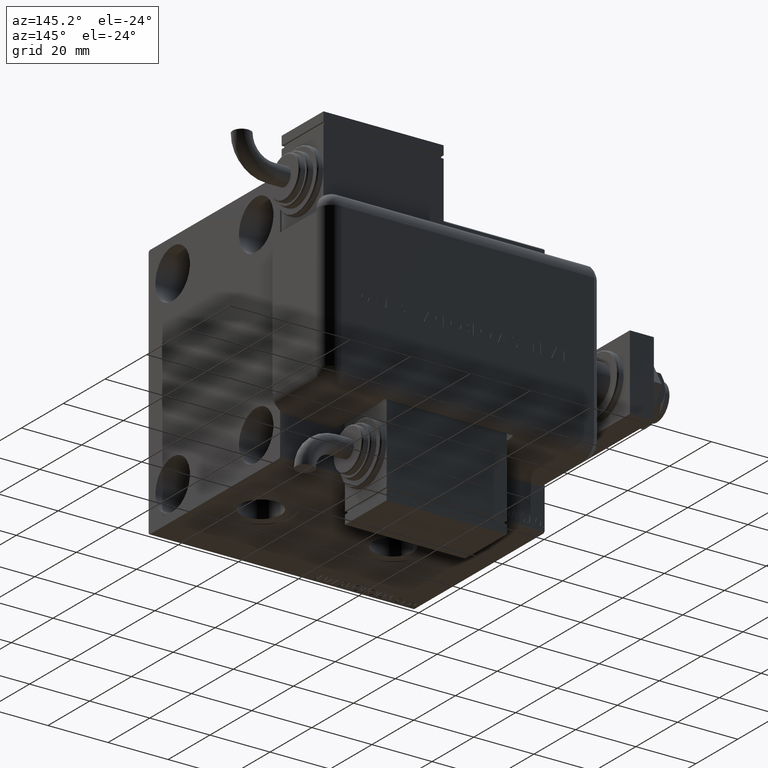
[diagram: clean part render]
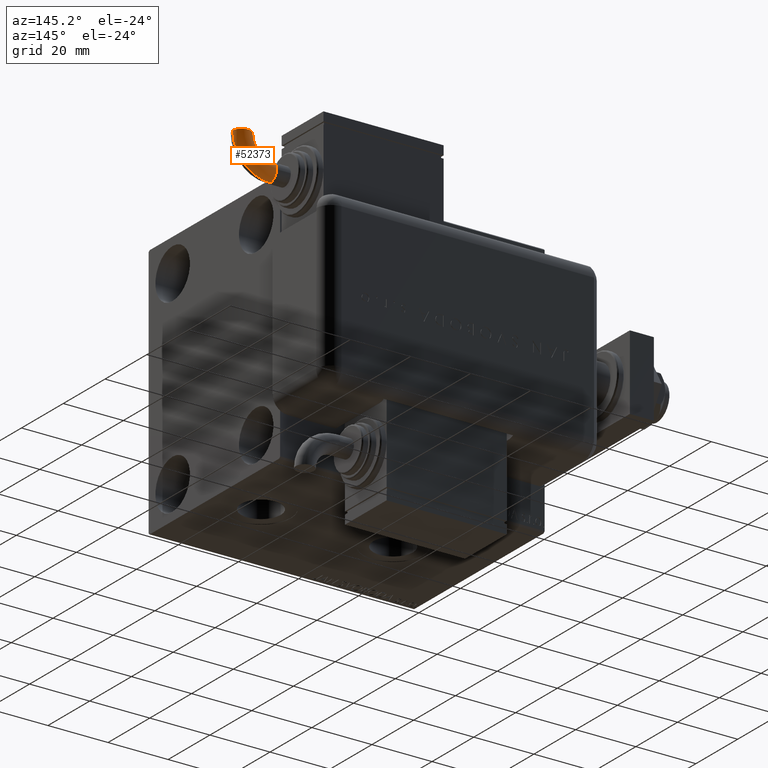
[diagram: same view with one face highlighted and labeled with its STEP entity id]
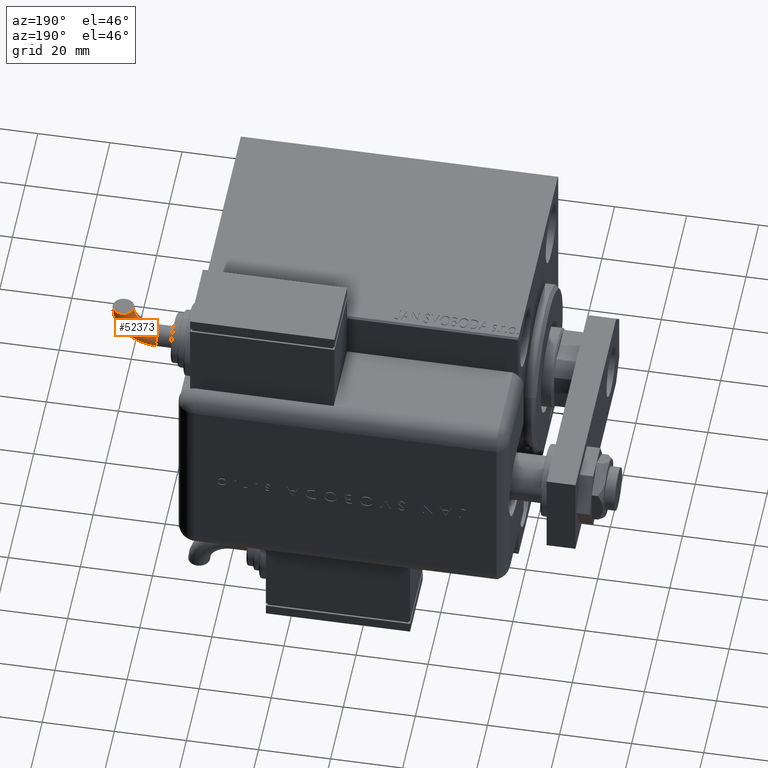
[diagram: same view with one face highlighted and labeled with its STEP entity id]
A machine part, auxiliary view. The second image highlights one B-rep face of the part: STEP entity #52373.
A second angle (auxiliary view) of the same face is appended — the face is thin or edge-on in the first view.
In plain terms, the highlighted toroidal blend (fillet) surface has major radius 9.5072 mm and minor (blend) radius 3 mm.
Its self-contained STEP definition (entity closure, byte-faithful):
#358 = ORIENTED_EDGE ( 'NONE', *, *, #15732, .T. ) ;
#2546 = ORIENTED_EDGE ( 'NONE', *, *, #47532, .F. ) ;
#4552 = ORIENTED_EDGE ( 'NONE', *, *, #36610, .F. ) ;
#4903 = EDGE_CURVE ( 'NONE', #27580, #24960, #56903, .T. ) ;
#6915 = CARTESIAN_POINT ( 'NONE',  ( -30.75201677704342274, 2.118407575146589373E-14, -2.999999999999997335 ) ) ;
#8115 = DIRECTION ( 'NONE',  ( -7.402363701065945741E-06, 0.9999999999726024713, 0.000000000000000000 ) ) ;
#9833 = CARTESIAN_POINT ( 'NONE',  ( -30.75201677704342274, 2.081668171172168513E-14, 0.000000000000000000 ) ) ;
#12486 = AXIS2_PLACEMENT_3D ( 'NONE', #56352, #28572, #24640 ) ;
#13508 = DIRECTION ( 'NONE',  ( 0.000000000000000000, 0.000000000000000000, 1.000000000000000000 ) ) ;
#13912 = VERTEX_POINT ( 'NONE', #21433 ) ;
#15732 = EDGE_CURVE ( 'NONE', #24960, #48219, #50385, .T. ) ;
#16857 = FACE_OUTER_BOUND ( 'NONE', #24577, .T. ) ;
#17196 = CARTESIAN_POINT ( 'NONE',  ( -30.75201677704341918, -2.999999999999976463, -3.673940397442056910E-16 ) ) ;
#18710 = CARTESIAN_POINT ( 'NONE',  ( -43.25922829597471519, -9.507304102202486007, 0.000000000000000000 ) ) ;
#21433 = CARTESIAN_POINT ( 'NONE',  ( -30.75201677704342629, 3.000000000000017319, 0.000000000000000000 ) ) ;
#24091 = CIRCLE ( 'NONE', #12486, 2.999999999999996003 ) ;
#24337 = DIRECTION ( 'NONE',  ( -1.156482317317872908E-15, 1.000000000000000000, 0.000000000000000000 ) ) ;
#24577 = EDGE_LOOP ( 'NONE', ( #35647, #4552, #2546, #29382, #358 ) ) ;
#24640 = DIRECTION ( 'NONE',  ( -1.156482317317872908E-15, 1.000000000000000000, 0.000000000000000000 ) ) ;
#24960 = VERTEX_POINT ( 'NONE', #53035 ) ;
#26512 = CARTESIAN_POINT ( 'NONE',  ( -30.75201677704342274, -9.507211519273942812, 0.000000000000000000 ) ) ;
#27254 = DIRECTION ( 'NONE',  ( 1.000000000000000000, 0.000000000000000000, 0.000000000000000000 ) ) ;
#27516 = AXIS2_PLACEMENT_3D ( 'NONE', #55817, #51283, #43426 ) ;
#27580 = VERTEX_POINT ( 'NONE', #17196 ) ;
#28272 = DIRECTION ( 'NONE',  ( 1.000000000000000000, 1.025520576932673761E-15, 0.000000000000000000 ) ) ;
#28572 = DIRECTION ( 'NONE',  ( 1.000000000000000000, 1.025520576932673761E-15, 0.000000000000000000 ) ) ;
#29382 = ORIENTED_EDGE ( 'NONE', *, *, #4903, .T. ) ;
#29451 = CIRCLE ( 'NONE', #27516, 12.50721151927396058 ) ;
#29893 = VERTEX_POINT ( 'NONE', #6915 ) ;
#31390 = DIRECTION ( 'NONE',  ( -0.9999999999726024713, -7.402363701169985951E-06, 0.000000000000000000 ) ) ;
#32741 = EDGE_CURVE ( 'NONE', #13912, #48219, #29451, .T. ) ;
#34724 = CARTESIAN_POINT ( 'NONE',  ( -40.25922829605691078, -9.507281895111381331, 0.000000000000000000 ) ) ;
#35647 = ORIENTED_EDGE ( 'NONE', *, *, #32741, .F. ) ;
#36610 = EDGE_CURVE ( 'NONE', #29893, #13912, #48895, .T. ) ;
#40646 = AXIS2_PLACEMENT_3D ( 'NONE', #26512, #13508, #54882 ) ;
#43426 = DIRECTION ( 'NONE',  ( 1.000000000000000000, 0.000000000000000000, 0.000000000000000000 ) ) ;
#46438 = TOROIDAL_SURFACE ( 'NONE', #40646, 9.507211519273964129, 2.999999999999996891 ) ;
#47532 = EDGE_CURVE ( 'NONE', #27580, #29893, #24091, .T. ) ;
#48219 = VERTEX_POINT ( 'NONE', #18710 ) ;
#48895 = CIRCLE ( 'NONE', #49844, 2.999999999999996003 ) ;
#49844 = AXIS2_PLACEMENT_3D ( 'NONE', #9833, #28272, #24337 ) ;
#49896 = CARTESIAN_POINT ( 'NONE',  ( -30.75201677704342274, -9.507211519273942812, -3.673940397442055924E-16 ) ) ;
#50199 = DIRECTION ( 'NONE',  ( 0.000000000000000000, 0.000000000000000000, 1.000000000000000000 ) ) ;
#50385 = CIRCLE ( 'NONE', #51325, 2.999999999999996891 ) ;
#51283 = DIRECTION ( 'NONE',  ( 0.000000000000000000, 0.000000000000000000, 1.000000000000000000 ) ) ;
#51325 = AXIS2_PLACEMENT_3D ( 'NONE', #34724, #8115, #31390 ) ;
#52373 = ADVANCED_FACE ( 'NONE', ( #16857 ), #46438, .T. ) ;
#53027 = AXIS2_PLACEMENT_3D ( 'NONE', #49896, #50199, #27254 ) ;
#53035 = CARTESIAN_POINT ( 'NONE',  ( -37.25922829613910636, -9.507259688020280208, -3.673940397551225891E-16 ) ) ;
#54882 = DIRECTION ( 'NONE',  ( 1.000000000000000000, 0.000000000000000000, 0.000000000000000000 ) ) ;
#55817 = CARTESIAN_POINT ( 'NONE',  ( -30.75201677704342274, -9.507211519273942812, 0.000000000000000000 ) ) ;
#56352 = CARTESIAN_POINT ( 'NONE',  ( -30.75201677704342274, 2.081668171172168513E-14, 0.000000000000000000 ) ) ;
#56903 = CIRCLE ( 'NONE', #53027, 6.507211519273966793 ) ;